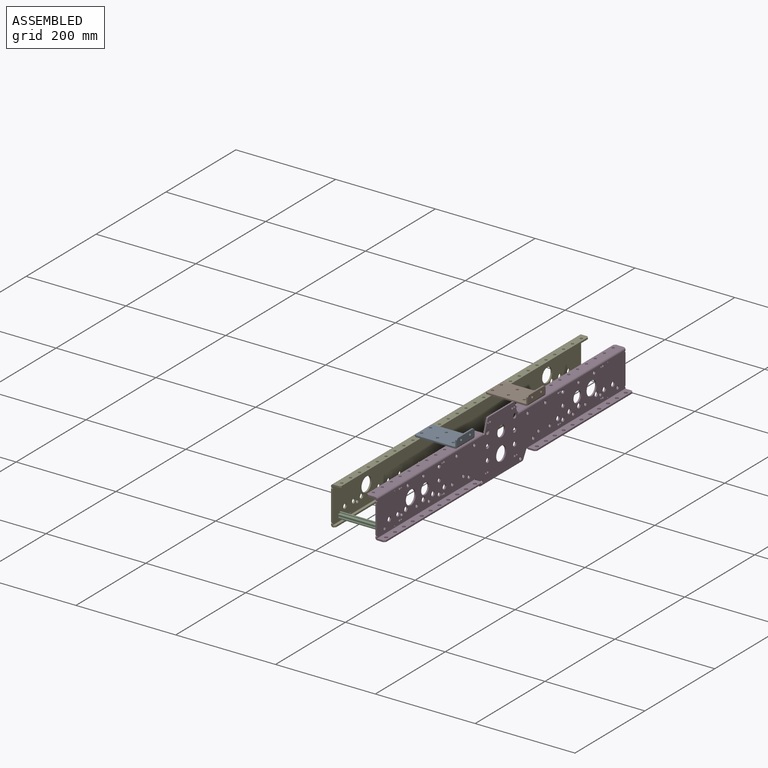
[diagram: assembled view]
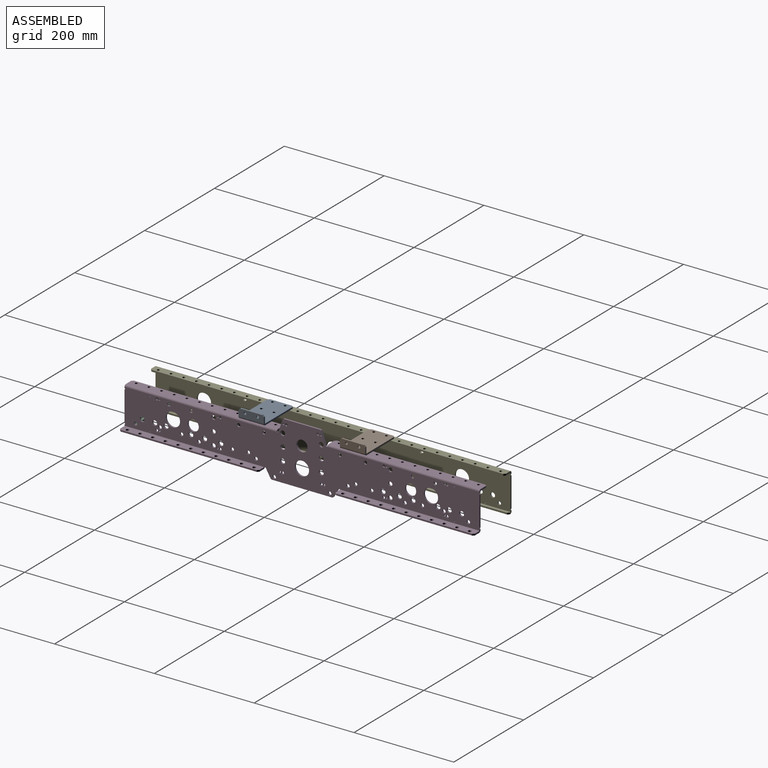
[diagram: assembled view, second angle]
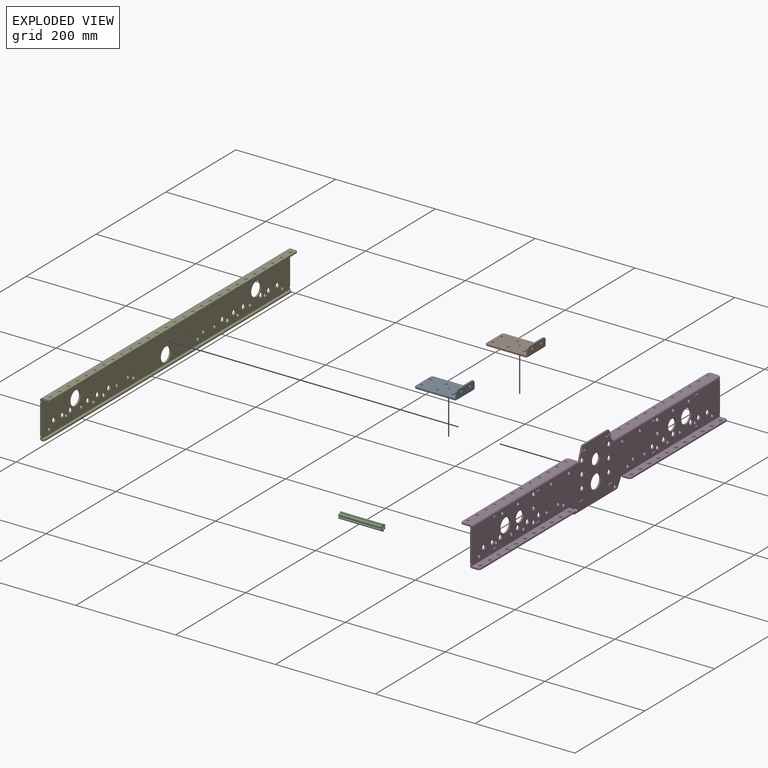
[diagram: exploded view]
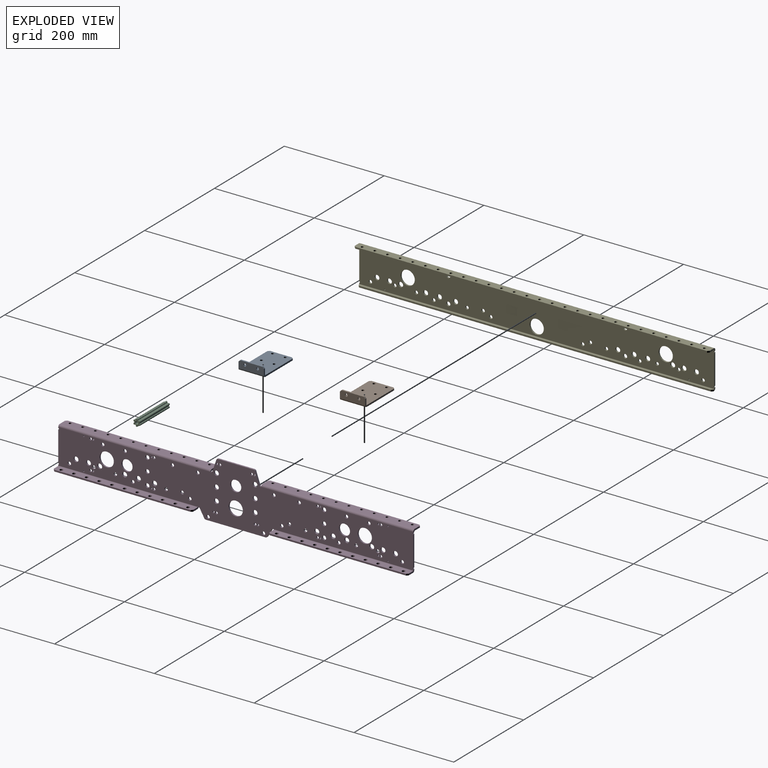
[diagram: exploded view, second angle]
ASSEMBLY  parts=5 mates=4
PART A: 22 faces, bbox 85.7x50.8x19.1 mm
  f0: cylinder r=2.67mm len=5.33mm, axis (-1,0,0), area 53.2mm2, adj f14,f15
  f1: cylinder r=2.67mm len=5.33mm, axis (-1,0,0), area 53.2mm2, adj f14,f15
  f2: cylinder r=2.67mm len=5.33mm, axis (0,0,1), area 53.2mm2, adj f10,f11
  f3: cylinder r=2.67mm len=5.33mm, axis (0,0,1), area 53.2mm2, adj f10,f11
  f4: cylinder r=2.67mm len=5.33mm, axis (0,0,1), area 53.2mm2, adj f10,f11
  f5: cylinder r=2.67mm len=5.33mm, axis (0,0,1), area 53.2mm2, adj f10,f11
  f6: cylinder r=2.67mm len=5.33mm, axis (0,0,1), area 53.2mm2, adj f10,f11
  f7: cylinder r=2.67mm len=5.33mm, axis (0,0,1), area 53.2mm2, adj f10,f11
  f8: plane 82.55x15.88mm, normal (0,1,0), area 299.2mm2, adj f10,f11,f12,f13,f14,f15,f18,f19
  f9: plane 44.45x3.18mm, normal (-1,0,0), area 141.1mm2, adj f10,f11,f19,f21
  f10: plane 81.79x50.8mm, normal (0,0,1), area 4010.7mm2, adj f2,f3,f4,f5,f6,f7,f8,f9
  f11: plane 81.79x50.8mm, normal (0,0,-1), area 4010.7mm2, adj f2,f3,f4,f5,f6,f7,f8,f9
  f12: cylinder r=3.94mm len=50.8mm, axis (0,1,0), area 314.2mm2, adj f8,f11,f14,f17
  f13: cylinder r=0.76mm len=50.8mm, axis (0,1,0), area 60.8mm2, adj f8,f10,f15,f17
  f14: plane 50.8x15.11mm, normal (1,0,0), area 713mm2, adj f0,f1,f8,f12,f16,f17,f18,f20
  f15: plane 50.8x15.11mm, normal (-1,0,0), area 713mm2, adj f0,f1,f8,f13,f16,f17,f18,f20
  f16: plane 44.45x3.18mm, normal (0,0,1), area 141.1mm2, adj f14,f15,f18,f20
  f17: plane 82.55x15.88mm, normal (0,-1,0), area 299.2mm2, adj f10,f11,f12,f13,f14,f15,f20,f21
  f18: plane 3.18x3.18mm, normal (0,0.71,0.71), area 14.3mm2, adj f8,f14,f15,f16
  f19: plane 3.18x3.18mm, normal (-0.71,0.71,0), area 14.3mm2, adj f8,f9,f10,f11
  f20: plane 3.18x3.18mm, normal (0,-0.71,0.71), area 14.3mm2, adj f14,f15,f16,f17
  f21: plane 3.18x3.18mm, normal (-0.71,-0.71,0), area 14.3mm2, adj f9,f10,f11,f17
PART B: same geometry as A
PART C: 21 faces, bbox 14.7x85.7x12.7 mm
  f0: cylinder r=2.93mm len=85.73mm, axis (0,1,0), area 1580.2mm2, adj f3,f4
  f1: cylinder r=1.59mm len=85.73mm, axis (0,1,0), area 427.5mm2, adj f3,f4,f5,f20
  f2: cylinder r=1.59mm len=85.73mm, axis (0,1,0), area 427.5mm2, adj f3,f4,f6,f7
  f3: plane 14.66x12.7mm, normal (0,-1,0), area 88.9mm2, adj f0,f1,f2,f5,f6,f7,f8,f9
  f4: plane 14.66x12.7mm, normal (0,1,0), area 88.9mm2, adj f0,f1,f2,f5,f6,f7,f8,f9
  f5: plane 85.73x1.8mm, normal (0.87,0,-0.5), area 178.2mm2, adj f1,f3,f4,f6
  f6: plane 85.73x1.8mm, normal (0.87,0,0.5), area 178.2mm2, adj f2,f3,f4,f5
  f7: plane 85.73x1.8mm, normal (0.87,0,0.5), area 178.2mm2, adj f2,f3,f4,f8
  f8: plane 85.73x2.08mm, normal (0,0,1), area 178.2mm2, adj f3,f4,f7,f9
  f9: cylinder r=1.59mm len=85.73mm, axis (0,1,0), area 427.5mm2, adj f3,f4,f8,f10
  f10: plane 85.73x2.08mm, normal (0,0,1), area 178.2mm2, adj f3,f4,f9,f11
  f11: plane 85.73x1.8mm, normal (-0.87,0,0.5), area 178.2mm2, adj f3,f4,f10,f12
  f12: cylinder r=1.59mm len=85.73mm, axis (0,1,0), area 427.5mm2, adj f3,f4,f11,f13
  f13: plane 85.73x1.8mm, normal (-0.87,0,0.5), area 178.2mm2, adj f3,f4,f12,f14
  f14: plane 85.73x1.8mm, normal (-0.87,0,-0.5), area 178.2mm2, adj f3,f4,f13,f15
  f15: cylinder r=1.59mm len=85.73mm, axis (0,1,0), area 427.5mm2, adj f3,f4,f14,f16
  f16: plane 85.73x1.8mm, normal (-0.87,0,-0.5), area 178.2mm2, adj f3,f4,f15,f17
  f17: plane 85.73x2.08mm, normal (0,0,-1), area 178.2mm2, adj f3,f4,f16,f18
  f18: cylinder r=1.59mm len=85.73mm, axis (0,1,0), area 427.5mm2, adj f3,f4,f17,f19
  f19: plane 85.73x2.08mm, normal (0,0,-1), area 178.2mm2, adj f3,f4,f18,f20
  f20: plane 85.73x1.8mm, normal (0.87,0,-0.5), area 178.2mm2, adj f1,f3,f4,f19
PART D: 190 faces, bbox 711.2x116.3x38.1 mm
  f0: cylinder r=3.35mm len=6.71mm, axis (0,0,1), area 66.9mm2, adj f128,f129
  f1: cylinder r=3.35mm len=6.71mm, axis (0,0,1), area 66.9mm2, adj f128,f129
  f2: cylinder r=3.35mm len=6.71mm, axis (0,0,1), area 66.9mm2, adj f128,f129
  f3: cylinder r=3.35mm len=6.71mm, axis (0,0,1), area 66.9mm2, adj f128,f129
  f4: cylinder r=3.35mm len=6.71mm, axis (0,0,1), area 66.9mm2, adj f128,f129
  f5: cylinder r=3.35mm len=6.71mm, axis (0,0,1), area 66.9mm2, adj f128,f129
  f6: cylinder r=3.35mm len=6.71mm, axis (0,0,1), area 66.9mm2, adj f128,f129
  f7: cylinder r=3.35mm len=6.71mm, axis (0,0,1), area 66.9mm2, adj f128,f129
  f8: cylinder r=3.35mm len=6.71mm, axis (0,0,1), area 66.9mm2, adj f128,f129
  f9: cylinder r=3.35mm len=6.71mm, axis (0,0,1), area 66.9mm2, adj f128,f129
  f10: cylinder r=2.55mm len=5.11mm, axis (0,0,1), area 50.9mm2, adj f128,f129
  f11: cylinder r=1.79mm len=3.57mm, axis (0,0,1), area 35.6mm2, adj f128,f129
  f12: cylinder r=2.55mm len=5.11mm, axis (0,0,1), area 50.9mm2, adj f128,f129
  f13: cylinder r=1.79mm len=3.57mm, axis (0,0,1), area 35.6mm2, adj f128,f129
  f14: cylinder r=14.29mm len=28.58mm, axis (0,0,1), area 285mm2, adj f128,f129
  f15: cylinder r=4.06mm len=8.13mm, axis (0,0,1), area 81.1mm2, adj f128,f129
  f16: cylinder r=1.79mm len=3.57mm, axis (0,0,1), area 35.6mm2, adj f128,f129
  f17: cylinder r=2.55mm len=5.11mm, axis (0,0,1), area 50.9mm2, adj f128,f129
  f18: cylinder r=11.11mm len=22.23mm, axis (0,0,1), area 221.7mm2, adj f128,f129
  f19: cylinder r=4.06mm len=8.13mm, axis (0,0,1), area 81.1mm2, adj f128,f129
  f20: cylinder r=4.06mm len=8.13mm, axis (0,0,1), area 81.1mm2, adj f128,f129
  f21: cylinder r=1.79mm len=3.57mm, axis (0,0,1), area 35.6mm2, adj f128,f129
  f22: cylinder r=2.55mm len=5.11mm, axis (0,0,1), area 50.9mm2, adj f128,f129
  f23: cylinder r=2.55mm len=5.11mm, axis (0,0,1), area 50.9mm2, adj f128,f129
  f24: cylinder r=1.79mm len=3.57mm, axis (0,0,1), area 35.6mm2, adj f128,f129
  f25: cylinder r=2.55mm len=5.11mm, axis (0,0,1), area 50.9mm2, adj f128,f129
  f26: cylinder r=1.79mm len=3.57mm, axis (0,0,1), area 35.6mm2, adj f128,f129
  f27: cylinder r=4.06mm len=8.13mm, axis (0,0,1), area 81.1mm2, adj f128,f129
  f28: cylinder r=4.06mm len=8.13mm, axis (0,0,1), area 81.1mm2, adj f128,f129
  f29: cylinder r=4.06mm len=8.13mm, axis (0,0,1), area 81.1mm2, adj f128,f129
  f30: cylinder r=11.11mm len=22.23mm, axis (0,0,1), area 221.7mm2, adj f128,f129
  f31: cylinder r=1.79mm len=3.57mm, axis (0,0,1), area 35.6mm2, adj f128,f129
  f32: cylinder r=2.55mm len=5.11mm, axis (0,0,1), area 50.9mm2, adj f128,f129
  f33: cylinder r=14.29mm len=28.58mm, axis (0,0,1), area 285mm2, adj f128,f129
  f34: cylinder r=1.79mm len=3.57mm, axis (0,0,1), area 35.6mm2, adj f128,f129
  f35: cylinder r=2.55mm len=5.11mm, axis (0,0,1), area 50.9mm2, adj f128,f129
  f36: cylinder r=3.4mm len=6.81mm, axis (0,0,1), area 67.9mm2, adj f128,f129
  f37: cylinder r=3.4mm len=6.81mm, axis (0,0,1), area 67.9mm2, adj f128,f129
  f38: cylinder r=1.27mm len=3.18mm, axis (0,0,-1), area 25.3mm2, adj f128,f129
  f39: cylinder r=1.27mm len=3.18mm, axis (0,0,-1), area 25.3mm2, adj f128,f129
  f40: cylinder r=1.27mm len=3.18mm, axis (0,0,-1), area 25.3mm2, adj f128,f129
  f41: cylinder r=1.27mm len=3.18mm, axis (0,0,-1), area 25.3mm2, adj f128,f129
  f42: cylinder r=3.35mm len=6.71mm, axis (0,0,-1), area 66.9mm2, adj f128,f129
  f43: cylinder r=3.35mm len=6.71mm, axis (0,0,-1), area 66.9mm2, adj f128,f129
  f44: cylinder r=3.35mm len=6.71mm, axis (0,0,-1), area 66.9mm2, adj f128,f129
  f45: cylinder r=3.35mm len=6.71mm, axis (0,0,-1), area 66.9mm2, adj f128,f129
  f46: cylinder r=3.35mm len=6.71mm, axis (0,0,-1), area 66.9mm2, adj f128,f129
  f47: cylinder r=3.35mm len=6.71mm, axis (0,0,-1), area 66.9mm2, adj f128,f129
  f48: cylinder r=2.03mm len=4.06mm, axis (0,0,-1), area 40.5mm2, adj f128,f129
  f49: cylinder r=2.03mm len=4.06mm, axis (0,0,-1), area 40.5mm2, adj f128,f129
  f50: cylinder r=2.54mm len=5.08mm, axis (0,0,-1), area 50.7mm2, adj f128,f129
  f51: cylinder r=2.54mm len=5.08mm, axis (0,0,-1), area 50.7mm2, adj f128,f129
  f52: cylinder r=2.03mm len=4.06mm, axis (0,0,-1), area 40.5mm2, adj f128,f129
  f53: cylinder r=2.03mm len=4.06mm, axis (0,0,-1), area 40.5mm2, adj f128,f129
  f54: cylinder r=2.54mm len=5.08mm, axis (0,0,-1), area 50.7mm2, adj f128,f129
  f55: cylinder r=2.54mm len=5.08mm, axis (0,0,-1), area 50.7mm2, adj f128,f129
  f56: cylinder r=4.76mm len=9.53mm, axis (0,0,-1), area 95mm2, adj f128,f129
  f57: cylinder r=4.76mm len=9.53mm, axis (0,0,-1), area 95mm2, adj f128,f129
  f58: cylinder r=4.76mm len=9.53mm, axis (0,0,-1), area 95mm2, adj f128,f129
  f59: cylinder r=4.76mm len=9.53mm, axis (0,0,-1), area 95mm2, adj f128,f129
  f60: cylinder r=4.76mm len=9.53mm, axis (0,0,-1), area 95mm2, adj f128,f129
  f61: cylinder r=4.76mm len=9.53mm, axis (0,0,-1), area 95mm2, adj f128,f129
  f62: cylinder r=11.11mm len=22.23mm, axis (0,0,-1), area 221.7mm2, adj f128,f129
  f63: cylinder r=3.35mm len=6.71mm, axis (0,1,0), area 66.9mm2, adj f148,f149
  f64: cylinder r=3.35mm len=6.71mm, axis (0,1,0), area 66.9mm2, adj f148,f149
  f65: cylinder r=3.35mm len=6.71mm, axis (0,1,0), area 66.9mm2, adj f148,f149
  f66: cylinder r=3.35mm len=6.71mm, axis (0,1,0), area 66.9mm2, adj f148,f149
  f67: cylinder r=3.35mm len=6.71mm, axis (0,1,0), area 66.9mm2, adj f148,f149
  f68: cylinder r=3.35mm len=6.71mm, axis (0,1,0), area 66.9mm2, adj f148,f149
  f69: cylinder r=3.35mm len=6.71mm, axis (0,1,0), area 66.9mm2, adj f148,f149
  f70: cylinder r=3.35mm len=6.71mm, axis (0,1,0), area 66.9mm2, adj f148,f149
  f71: cylinder r=3.35mm len=6.71mm, axis (0,1,0), area 66.9mm2, adj f148,f149
  f72: cylinder r=3.35mm len=6.71mm, axis (0,1,0), area 66.9mm2, adj f148,f149
  f73: cylinder r=3.35mm len=6.71mm, axis (0,1,0), area 66.9mm2, adj f148,f149
  f74: cylinder r=3.35mm len=6.71mm, axis (0,1,0), area 66.9mm2, adj f143,f144
  f75: cylinder r=3.35mm len=6.71mm, axis (0,1,0), area 66.9mm2, adj f143,f144
  f76: cylinder r=3.35mm len=6.71mm, axis (0,1,0), area 66.9mm2, adj f143,f144
  f77: cylinder r=3.35mm len=6.71mm, axis (0,1,0), area 66.9mm2, adj f143,f144
  f78: cylinder r=3.35mm len=6.71mm, axis (0,1,0), area 66.9mm2, adj f143,f144
  f79: cylinder r=3.35mm len=6.71mm, axis (0,1,0), area 66.9mm2, adj f143,f144
  f80: cylinder r=3.35mm len=6.71mm, axis (0,1,0), area 66.9mm2, adj f143,f144
  f81: cylinder r=3.35mm len=6.71mm, axis (0,1,0), area 66.9mm2, adj f143,f144
  f82: cylinder r=3.35mm len=6.71mm, axis (0,1,0), area 66.9mm2, adj f143,f144
  f83: cylinder r=3.35mm len=6.71mm, axis (0,1,0), area 66.9mm2, adj f143,f144
  f84: cylinder r=3.35mm len=6.71mm, axis (0,1,0), area 66.9mm2, adj f143,f144
  f85: cylinder r=2.67mm len=5.33mm, axis (0,1,0), area 53.2mm2, adj f136,f137
  f86: cylinder r=2.67mm len=5.33mm, axis (0,1,0), area 53.2mm2, adj f136,f137
  f87: cylinder r=2.67mm len=5.33mm, axis (0,1,0), area 53.2mm2, adj f136,f137
  f88: cylinder r=2.67mm len=5.33mm, axis (0,1,0), area 53.2mm2, adj f136,f137
  f89: cylinder r=2.67mm len=5.33mm, axis (0,1,0), area 53.2mm2, adj f136,f137
  f90: cylinder r=2.67mm len=5.33mm, axis (0,1,0), area 53.2mm2, adj f136,f137
  f91: cylinder r=2.67mm len=5.33mm, axis (0,1,0), area 53.2mm2, adj f136,f137
  f92: cylinder r=2.67mm len=5.33mm, axis (0,1,0), area 53.2mm2, adj f136,f137
  f93: cylinder r=2.67mm len=5.33mm, axis (0,1,0), area 53.2mm2, adj f136,f137
  f94: cylinder r=2.67mm len=5.33mm, axis (0,1,0), area 53.2mm2, adj f136,f137
  f95: cylinder r=2.67mm len=5.33mm, axis (0,1,0), area 53.2mm2, adj f136,f137
  f96: cylinder r=2.67mm len=5.33mm, axis (0,1,0), area 53.2mm2, adj f136,f137
  f97: cylinder r=2.67mm len=5.33mm, axis (0,1,0), area 53.2mm2, adj f153,f154
  f98: cylinder r=2.67mm len=5.33mm, axis (0,1,0), area 53.2mm2, adj f153,f154
  f99: cylinder r=2.67mm len=5.33mm, axis (0,1,0), area 53.2mm2, adj f153,f154
  f100: cylinder r=2.67mm len=5.33mm, axis (0,1,0), area 53.2mm2, adj f153,f154
  f101: cylinder r=2.67mm len=5.33mm, axis (0,1,0), area 53.2mm2, adj f153,f154
  f102: cylinder r=2.67mm len=5.33mm, axis (0,1,0), area 53.2mm2, adj f153,f154
  f103: cylinder r=2.67mm len=5.33mm, axis (0,1,0), area 53.2mm2, adj f153,f154
  f104: cylinder r=2.67mm len=5.33mm, axis (0,1,0), area 53.2mm2, adj f153,f154
  f105: cylinder r=2.67mm len=5.33mm, axis (0,1,0), area 53.2mm2, adj f153,f154
  f106: cylinder r=2.67mm len=5.33mm, axis (0,1,0), area 53.2mm2, adj f153,f154
  f107: cylinder r=2.67mm len=5.33mm, axis (0,1,0), area 53.2mm2, adj f153,f154
  f108: cylinder r=2.67mm len=5.33mm, axis (0,1,0), area 53.2mm2, adj f153,f154
  f109: cylinder r=3.35mm len=6.71mm, axis (0,0,1), area 66.9mm2, adj f128,f129
  f110: cylinder r=3.35mm len=6.71mm, axis (0,0,1), area 66.9mm2, adj f128,f129
  f111: cylinder r=3.35mm len=6.71mm, axis (0,0,1), area 66.9mm2, adj f128,f129
  f112: cylinder r=3.35mm len=6.71mm, axis (0,0,1), area 66.9mm2, adj f128,f129
  f113: cylinder r=3.35mm len=6.71mm, axis (0,0,1), area 66.9mm2, adj f128,f129
  f114: cylinder r=3.35mm len=6.71mm, axis (0,0,1), area 66.9mm2, adj f128,f129
  f115: cylinder r=4.83mm len=9.65mm, axis (0,0,1), area 96.3mm2, adj f128,f129
  f116: cylinder r=4.83mm len=9.65mm, axis (0,0,1), area 96.3mm2, adj f128,f129
  f117: cylinder r=4.83mm len=9.65mm, axis (0,0,1), area 96.3mm2, adj f128,f129
  f118: cylinder r=4.83mm len=9.65mm, axis (0,0,1), area 96.3mm2, adj f128,f129
  f119: cylinder r=4.83mm len=9.65mm, axis (0,0,1), area 96.3mm2, adj f128,f129
  f120: cylinder r=4.83mm len=9.65mm, axis (0,0,1), area 96.3mm2, adj f128,f129
  f121: cylinder r=4.83mm len=9.65mm, axis (0,0,1), area 96.3mm2, adj f128,f129
  f122: cylinder r=4.83mm len=9.65mm, axis (0,0,1), area 96.3mm2, adj f128,f129
  f123: cylinder r=4.83mm len=9.65mm, axis (0,0,1), area 96.3mm2, adj f128,f129
  f124: cylinder r=4.83mm len=9.65mm, axis (0,0,1), area 96.3mm2, adj f128,f129
  f125: cylinder r=4.83mm len=9.65mm, axis (0,0,1), area 96.3mm2, adj f128,f129
  f126: cylinder r=4.83mm len=9.65mm, axis (0,0,1), area 96.3mm2, adj f128,f129
  f127: cylinder r=14.29mm len=28.58mm, axis (0,0,1), area 285mm2, adj f128,f129
  f128: plane 711.2x116.33mm, normal (0,0,1), area 48642.2mm2, adj f0,f1,f2,f3,f4,f5,f6,f7
  f129: plane 711.2x116.33mm, normal (0,0,-1), area 48642.2mm2, adj f0,f1,f2,f3,f4,f5,f6,f7
  f130: plane 71.83x3.18mm, normal (0,1,0), area 228.1mm2, adj f128,f129,f169,f170
  f131: plane 120.39x3.18mm, normal (0,-1,0), area 382.2mm2, adj f128,f129,f173,f175
  f132: plane 3.18x0.91mm, normal (0,1,0), area 2.9mm2, adj f128,f129,f158,f168
  f133: plane 3.18x0.91mm, normal (0,1,0), area 2.9mm2, adj f128,f129,f159,f171
  f134: cylinder r=3.94mm len=304.8mm, axis (1,0,0), area 1885mm2, adj f128,f136,f158,f185
  f135: cylinder r=0.76mm len=304.8mm, axis (1,0,0), area 364.8mm2, adj f129,f137,f158,f185
  f136: plane 304.8x18.29mm, normal (0,1,0), area 5296mm2, adj f85,f86,f87,f88,f89,f90,f91,f92
  f137: plane 304.8x18.29mm, normal (0,-1,0), area 5296mm2, adj f85,f86,f87,f88,f89,f90,f91,f92
  f138: plane 298.45x3.18mm, normal (0,0,-1), area 947.6mm2, adj f136,f137,f179,f186
  f139: plane 3.18x1.34mm, normal (0,-1,0), area 4.3mm2, adj f128,f129,f156,f174
  f140: plane 3.18x1.34mm, normal (0,-1,0), area 4.3mm2, adj f128,f129,f157,f172
  f141: cylinder r=3.94mm len=279.4mm, axis (1,0,0), area 1727.9mm2, adj f129,f143,f156,f181
  f142: cylinder r=0.76mm len=279.4mm, axis (1,0,0), area 334.4mm2, adj f128,f144,f156,f181
  f143: plane 279.4x15.11mm, normal (0,-1,0), area 3824mm2, adj f74,f75,f76,f77,f78,f79,f80,f81
  f144: plane 279.4x15.11mm, normal (0,1,0), area 3824mm2, adj f74,f75,f76,f77,f78,f79,f80,f81
  f145: plane 273.05x3.18mm, normal (0,0,1), area 866.9mm2, adj f143,f144,f176,f189
  f146: cylinder r=3.94mm len=279.4mm, axis (1,0,0), area 1727.9mm2, adj f129,f148,f157,f183
  f147: cylinder r=0.76mm len=279.4mm, axis (1,0,0), area 334.4mm2, adj f128,f149,f157,f183
  f148: plane 279.4x15.11mm, normal (0,-1,0), area 3824mm2, adj f63,f64,f65,f66,f67,f68,f69,f70
  f149: plane 279.4x15.11mm, normal (0,1,0), area 3824mm2, adj f63,f64,f65,f66,f67,f68,f69,f70
  f150: plane 273.05x3.18mm, normal (0,0,1), area 866.9mm2, adj f148,f149,f177,f187
  f151: cylinder r=3.94mm len=304.8mm, axis (1,0,0), area 1885mm2, adj f128,f153,f159,f182
  f152: cylinder r=0.76mm len=304.8mm, axis (1,0,0), area 364.8mm2, adj f129,f154,f159,f182
  f153: plane 304.8x18.29mm, normal (0,1,0), area 5296mm2, adj f97,f98,f99,f100,f101,f102,f103,f104
  f154: plane 304.8x18.29mm, normal (0,-1,0), area 5296mm2, adj f97,f98,f99,f100,f101,f102,f103,f104
  f155: plane 298.45x3.18mm, normal (0,0,-1), area 947.6mm2, adj f153,f154,f178,f188
  f156: plane 15.88x3.94mm, normal (1,0,0), area 49.6mm2, adj f139,f141,f142,f143,f144,f176
  f157: plane 15.88x3.94mm, normal (-1,0,0), area 49.6mm2, adj f140,f146,f147,f148,f149,f177
  f158: plane 19.05x3.94mm, normal (-1,0,0), area 59.7mm2, adj f132,f134,f135,f136,f137,f179
  f159: plane 19.05x3.94mm, normal (1,0,0), area 59.7mm2, adj f133,f151,f152,f153,f154,f178
  f160: plane 15.88x9.17mm, normal (0.87,-0.5,0), area 58.2mm2, adj f128,f129,f172,f173
  f161: plane 15.88x9.17mm, normal (-0.87,-0.5,0), area 58.2mm2, adj f128,f129,f174,f175
  f162: plane 23.15x7.97mm, normal (-0.95,0.33,0), area 77.7mm2, adj f128,f129,f170,f171
  f163: plane 23.15x7.97mm, normal (0.95,0.33,0), area 77.7mm2, adj f128,f129,f168,f169
  f164: cylinder r=1.27mm len=3.18mm, axis (0,0,-1), area 12.7mm2, adj f128,f129,f180,f182
  f165: cylinder r=1.27mm len=3.18mm, axis (0,0,-1), area 12.7mm2, adj f128,f129,f180,f181
  f166: cylinder r=1.27mm len=3.18mm, axis (0,0,-1), area 12.7mm2, adj f128,f129,f184,f185
  f167: cylinder r=1.27mm len=3.18mm, axis (0,0,-1), area 12.7mm2, adj f128,f129,f183,f184
  f168: cylinder r=3.17mm len=3.18mm, axis (0,0,1), area 12.5mm2, adj f128,f129,f132,f163
  f169: cylinder r=3.17mm len=3.18mm, axis (0,0,-1), area 12.5mm2, adj f128,f129,f130,f163
  f170: cylinder r=3.17mm len=3.18mm, axis (0,0,-1), area 12.5mm2, adj f128,f129,f130,f162
  f171: cylinder r=3.17mm len=3.18mm, axis (0,0,-1), area 12.5mm2, adj f128,f129,f133,f162
  f172: cylinder r=3.17mm len=3.18mm, axis (0,0,-1), area 10.6mm2, adj f128,f129,f140,f160
  f173: cylinder r=3.17mm len=3.18mm, axis (0,0,-1), area 10.6mm2, adj f128,f129,f131,f160
  f174: cylinder r=3.17mm len=3.18mm, axis (0,0,1), area 10.6mm2, adj f128,f129,f139,f161
  f175: cylinder r=3.17mm len=3.18mm, axis (0,0,-1), area 10.6mm2, adj f128,f129,f131,f161
  f176: plane 3.18x3.18mm, normal (0.71,0,0.71), area 14.3mm2, adj f143,f144,f145,f156
  f177: plane 3.18x3.18mm, normal (-0.71,0,0.71), area 14.3mm2, adj f148,f149,f150,f157
  f178: plane 3.18x3.18mm, normal (0.71,0,-0.71), area 14.3mm2, adj f153,f154,f155,f159
  f179: plane 3.18x3.18mm, normal (-0.71,0,-0.71), area 14.3mm2, adj f136,f137,f138,f158
  f180: plane 60.96x3.18mm, normal (-1,0,0), area 193.5mm2, adj f128,f129,f164,f165
  f181: plane 15.88x5.84mm, normal (-1,0,0), area 55.7mm2, adj f128,f129,f141,f142,f143,f144,f165,f189
  f182: plane 19.05x5.84mm, normal (-1,0,0), area 65.7mm2, adj f128,f129,f151,f152,f153,f154,f164,f188
  f183: plane 15.88x5.84mm, normal (1,0,0), area 55.7mm2, adj f128,f129,f146,f147,f148,f149,f167,f187
  f184: plane 60.96x3.18mm, normal (1,0,0), area 193.5mm2, adj f128,f129,f166,f167
  f185: plane 19.05x5.84mm, normal (1,0,0), area 65.7mm2, adj f128,f129,f134,f135,f136,f137,f166,f186
  f186: plane 3.18x3.18mm, normal (0.71,0,-0.71), area 14.3mm2, adj f136,f137,f138,f185
  f187: plane 3.18x3.18mm, normal (0.71,0,0.71), area 14.3mm2, adj f148,f149,f150,f183
  f188: plane 3.18x3.18mm, normal (-0.71,0,-0.71), area 14.3mm2, adj f153,f154,f155,f182
  f189: plane 3.18x3.18mm, normal (-0.71,0,0.71), area 14.3mm2, adj f143,f144,f145,f181
PART E: 91 faces, bbox 711.2x77.7x19.1 mm
  f0: cylinder r=4.06mm len=8.13mm, axis (0,0,1), area 81.1mm2, adj f69,f70
  f1: cylinder r=4.06mm len=8.13mm, axis (0,0,1), area 81.1mm2, adj f69,f70
  f2: cylinder r=4.06mm len=8.13mm, axis (0,0,1), area 81.1mm2, adj f69,f70
  f3: cylinder r=4.06mm len=8.13mm, axis (0,0,1), area 81.1mm2, adj f69,f70
  f4: cylinder r=3.38mm len=6.76mm, axis (0,0,1), area 67.4mm2, adj f69,f70
  f5: cylinder r=3.38mm len=6.76mm, axis (0,0,1), area 67.4mm2, adj f69,f70
  f6: cylinder r=3.38mm len=6.76mm, axis (0,0,1), area 67.4mm2, adj f69,f70
  f7: cylinder r=3.38mm len=6.76mm, axis (0,0,1), area 67.4mm2, adj f69,f70
  f8: cylinder r=3.35mm len=6.71mm, axis (0,0,1), area 66.9mm2, adj f69,f70
  f9: cylinder r=3.35mm len=6.71mm, axis (0,0,1), area 66.9mm2, adj f69,f70
  f10: cylinder r=3.35mm len=6.71mm, axis (0,0,1), area 66.9mm2, adj f69,f70
  f11: cylinder r=3.35mm len=6.71mm, axis (0,0,1), area 66.9mm2, adj f69,f70
  f12: cylinder r=3.35mm len=6.71mm, axis (0,0,1), area 66.9mm2, adj f69,f70
  f13: cylinder r=3.35mm len=6.71mm, axis (0,0,1), area 66.9mm2, adj f69,f70
  f14: cylinder r=3.35mm len=6.71mm, axis (0,0,1), area 66.9mm2, adj f69,f70
  f15: cylinder r=3.35mm len=6.71mm, axis (0,0,1), area 66.9mm2, adj f69,f70
  f16: cylinder r=3.35mm len=6.71mm, axis (0,0,1), area 66.9mm2, adj f69,f70
  f17: cylinder r=3.35mm len=6.71mm, axis (0,0,1), area 66.9mm2, adj f69,f70
  f18: cylinder r=14.29mm len=28.58mm, axis (0,0,1), area 285mm2, adj f69,f70
  f19: cylinder r=14.29mm len=28.58mm, axis (0,0,1), area 285mm2, adj f69,f70
  f20: cylinder r=1.27mm len=3.18mm, axis (0,0,1), area 25.3mm2, adj f69,f70
  f21: cylinder r=1.27mm len=3.18mm, axis (0,0,1), area 25.3mm2, adj f69,f70
  f22: cylinder r=1.27mm len=3.18mm, axis (0,0,1), area 25.3mm2, adj f69,f70
  f23: cylinder r=1.27mm len=3.18mm, axis (0,0,1), area 25.3mm2, adj f69,f70
  f24: cylinder r=4.83mm len=9.65mm, axis (0,0,1), area 96.3mm2, adj f69,f70
  f25: cylinder r=4.83mm len=9.65mm, axis (0,0,1), area 96.3mm2, adj f69,f70
  f26: cylinder r=4.83mm len=9.65mm, axis (0,0,1), area 96.3mm2, adj f69,f70
  f27: cylinder r=4.83mm len=9.65mm, axis (0,0,1), area 96.3mm2, adj f69,f70
  f28: cylinder r=4.83mm len=9.65mm, axis (0,0,1), area 96.3mm2, adj f69,f70
  f29: cylinder r=4.83mm len=9.65mm, axis (0,0,1), area 96.3mm2, adj f69,f70
  f30: cylinder r=4.83mm len=9.65mm, axis (0,0,1), area 96.3mm2, adj f69,f70
  f31: cylinder r=4.83mm len=9.65mm, axis (0,0,1), area 96.3mm2, adj f69,f70
  f32: cylinder r=4.83mm len=9.65mm, axis (0,0,1), area 96.3mm2, adj f69,f70
  f33: cylinder r=4.83mm len=9.65mm, axis (0,0,1), area 96.3mm2, adj f69,f70
  f34: cylinder r=4.83mm len=9.65mm, axis (0,0,1), area 96.3mm2, adj f69,f70
  f35: cylinder r=4.83mm len=9.65mm, axis (0,0,1), area 96.3mm2, adj f69,f70
  f36: cylinder r=2.67mm len=5.33mm, axis (0,1,0), area 53.2mm2, adj f73,f74
  f37: cylinder r=2.67mm len=5.33mm, axis (0,1,0), area 53.2mm2, adj f73,f74
  f38: cylinder r=2.67mm len=5.33mm, axis (0,1,0), area 53.2mm2, adj f73,f74
  f39: cylinder r=2.67mm len=5.33mm, axis (0,1,0), area 53.2mm2, adj f73,f74
  f40: cylinder r=2.67mm len=5.33mm, axis (0,1,0), area 53.2mm2, adj f73,f74
  f41: cylinder r=2.67mm len=5.33mm, axis (0,1,0), area 53.2mm2, adj f73,f74
  f42: cylinder r=2.67mm len=5.33mm, axis (0,1,0), area 53.2mm2, adj f73,f74
  f43: cylinder r=2.67mm len=5.33mm, axis (0,1,0), area 53.2mm2, adj f73,f74
  f44: cylinder r=2.67mm len=5.33mm, axis (0,1,0), area 53.2mm2, adj f73,f74
  f45: cylinder r=2.67mm len=5.33mm, axis (0,1,0), area 53.2mm2, adj f73,f74
  f46: cylinder r=2.67mm len=5.33mm, axis (0,1,0), area 53.2mm2, adj f73,f74
  f47: cylinder r=2.67mm len=5.33mm, axis (0,1,0), area 53.2mm2, adj f73,f74
  f48: cylinder r=2.67mm len=5.33mm, axis (0,1,0), area 53.2mm2, adj f73,f74
  f49: cylinder r=2.67mm len=5.33mm, axis (0,1,0), area 53.2mm2, adj f73,f74
  f50: cylinder r=2.67mm len=5.33mm, axis (0,1,0), area 53.2mm2, adj f73,f74
  f51: cylinder r=2.67mm len=5.33mm, axis (0,1,0), area 53.2mm2, adj f73,f74
  f52: cylinder r=2.67mm len=5.33mm, axis (0,1,0), area 53.2mm2, adj f73,f74
  f53: cylinder r=2.67mm len=5.33mm, axis (0,1,0), area 53.2mm2, adj f73,f74
  f54: cylinder r=2.67mm len=5.33mm, axis (0,1,0), area 53.2mm2, adj f73,f74
  f55: cylinder r=2.67mm len=5.33mm, axis (0,1,0), area 53.2mm2, adj f73,f74
  f56: cylinder r=2.67mm len=5.33mm, axis (0,1,0), area 53.2mm2, adj f73,f74
  f57: cylinder r=2.67mm len=5.33mm, axis (0,1,0), area 53.2mm2, adj f73,f74
  f58: cylinder r=2.67mm len=5.33mm, axis (0,1,0), area 53.2mm2, adj f73,f74
  f59: cylinder r=2.67mm len=5.33mm, axis (0,1,0), area 53.2mm2, adj f73,f74
  f60: cylinder r=2.67mm len=5.33mm, axis (0,1,0), area 53.2mm2, adj f73,f74
  f61: cylinder r=2.67mm len=5.33mm, axis (0,1,0), area 53.2mm2, adj f73,f74
  f62: cylinder r=2.67mm len=5.33mm, axis (0,1,0), area 53.2mm2, adj f73,f74
  f63: cylinder r=2.67mm len=5.33mm, axis (0,1,0), area 53.2mm2, adj f73,f74
  f64: cylinder r=14.29mm len=28.58mm, axis (0,0,1), area 285mm2, adj f69,f70
  f65: plane 711.2x4mm, normal (0,-1,0), area 2835.1mm2, adj f67,f80,f81,f84,f87,f89
  f66: plane 711.2x4mm, normal (0,1,0), area 2835.1mm2, adj f68,f80,f81,f84,f87,f89
  f67: cylinder r=3.94mm len=711.2mm, axis (-1,0,0), area 4398.2mm2, adj f65,f69,f81,f84
  f68: cylinder r=0.76mm len=711.2mm, axis (-1,0,0), area 851.3mm2, adj f66,f70,f81,f84
  f69: plane 711.2x69.85mm, normal (0,0,1), area 46140.9mm2, adj f0,f1,f2,f3,f4,f5,f6,f7
  f70: plane 711.2x69.85mm, normal (0,0,-1), area 46140.9mm2, adj f0,f1,f2,f3,f4,f5,f6,f7
  f71: cylinder r=3.94mm len=711.2mm, axis (1,0,0), area 4398.2mm2, adj f69,f73,f83,f86
  f72: cylinder r=0.76mm len=711.2mm, axis (1,0,0), area 851.3mm2, adj f70,f74,f83,f86
  f73: plane 711.2x15.11mm, normal (0,1,0), area 10112.6mm2, adj f36,f37,f38,f39,f40,f41,f42,f43
  f74: plane 711.2x15.11mm, normal (0,-1,0), area 10112.6mm2, adj f36,f37,f38,f39,f40,f41,f42,f43
  f75: plane 704.85x3.18mm, normal (0,0,-1), area 2237.9mm2, adj f73,f74,f88,f90
  f76: cylinder r=1.27mm len=3.18mm, axis (0,0,1), area 12.7mm2, adj f69,f70,f82,f83
  f77: cylinder r=1.27mm len=3.18mm, axis (0,0,1), area 12.7mm2, adj f69,f70,f81,f82
  f78: cylinder r=1.27mm len=3.18mm, axis (0,0,1), area 12.7mm2, adj f69,f70,f85,f86
  f79: cylinder r=1.27mm len=3.18mm, axis (0,0,1), area 12.7mm2, adj f69,f70,f84,f85
  f80: plane 704.85x3.18mm, normal (0,0,-1), area 2237.9mm2, adj f65,f66,f87,f89
  f81: plane 5.84x4.76mm, normal (-1,0,0), area 20.4mm2, adj f65,f66,f67,f68,f69,f70,f77,f89
  f82: plane 60.96x3.18mm, normal (-1,0,0), area 193.5mm2, adj f69,f70,f76,f77
  f83: plane 15.88x5.84mm, normal (-1,0,0), area 55.7mm2, adj f69,f70,f71,f72,f73,f74,f76,f90
  f84: plane 5.84x4.76mm, normal (1,0,0), area 20.4mm2, adj f65,f66,f67,f68,f69,f70,f79,f87
  f85: plane 60.96x3.18mm, normal (1,0,0), area 193.5mm2, adj f69,f70,f78,f79
  f86: plane 15.88x5.84mm, normal (1,0,0), area 55.7mm2, adj f69,f70,f71,f72,f73,f74,f78,f88
  f87: plane 3.18x3.18mm, normal (0.71,0,-0.71), area 14.3mm2, adj f65,f66,f80,f84
  f88: plane 3.18x3.18mm, normal (0.71,0,-0.71), area 14.3mm2, adj f73,f74,f75,f86
  f89: plane 3.18x3.18mm, normal (-0.71,0,-0.71), area 14.3mm2, adj f65,f66,f80,f81
  f90: plane 3.18x3.18mm, normal (-0.71,0,-0.71), area 14.3mm2, adj f73,f74,f75,f83
PLACE A t=(6.35,-139.7,56.51)mm
PLACE B t=(6.35,63.5,56.51)mm
PLACE C rot(axis=(0.58,0.58,-0.58),120deg) t=(88.9,-333.38,-7.75)mm
PLACE D rot(axis=(0.58,0.58,0.58),120deg) t=(80.04,-284.95,40.73)mm
PLACE E rot(axis=(0.58,-0.58,-0.58),120deg) t=(24.4,283.95,32.92)mm
MATE fastened B.f6 <-> E.f53  axis (0,0,-1) through (12.7,88.9,56.52)mm
MATE fastened D.f9 <-> C.f0  axis (-1,0,0) through (88.9,-333.38,-7.75)mm
MATE fastened C.f0 <-> E.f8  axis (-1,0,0) through (3.17,-333.38,-7.75)mm
MATE fastened A.f6 <-> E.f45  axis (0,0,-1) through (12.7,-114.3,56.52)mm
